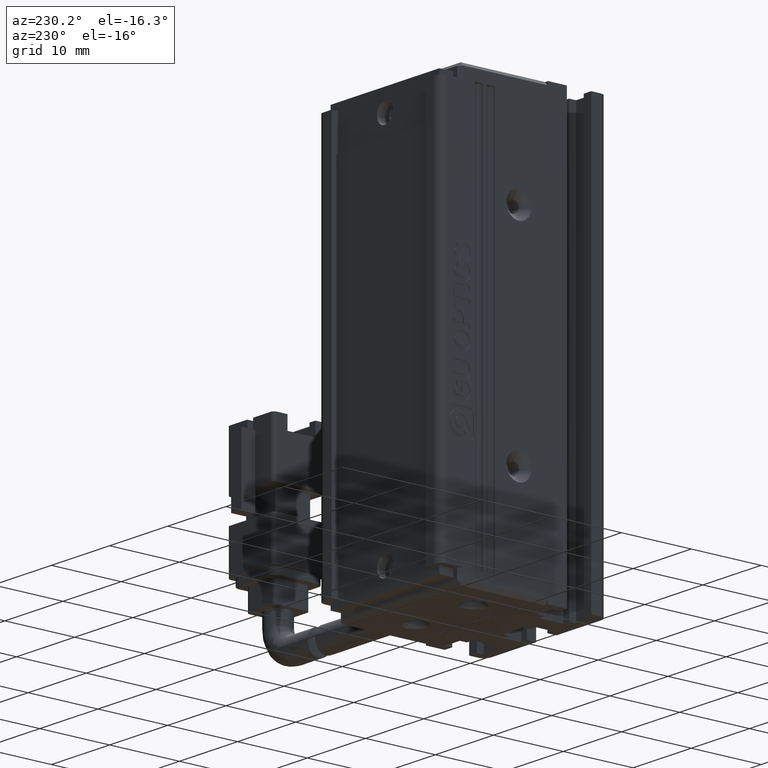
[diagram: clean part render]
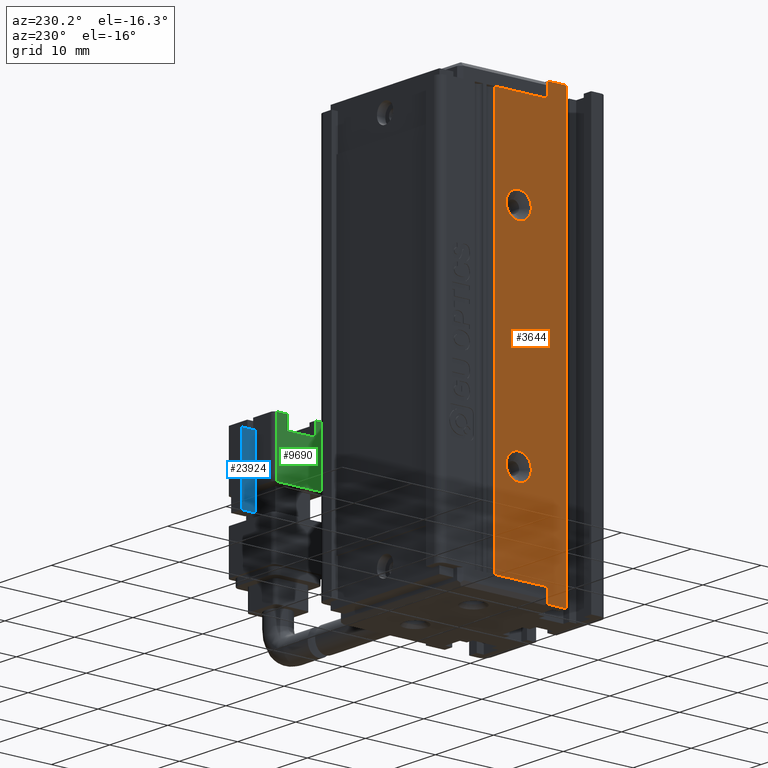
[diagram: same view with three faces highlighted in distinct colors, each labeled with its STEP entity id]
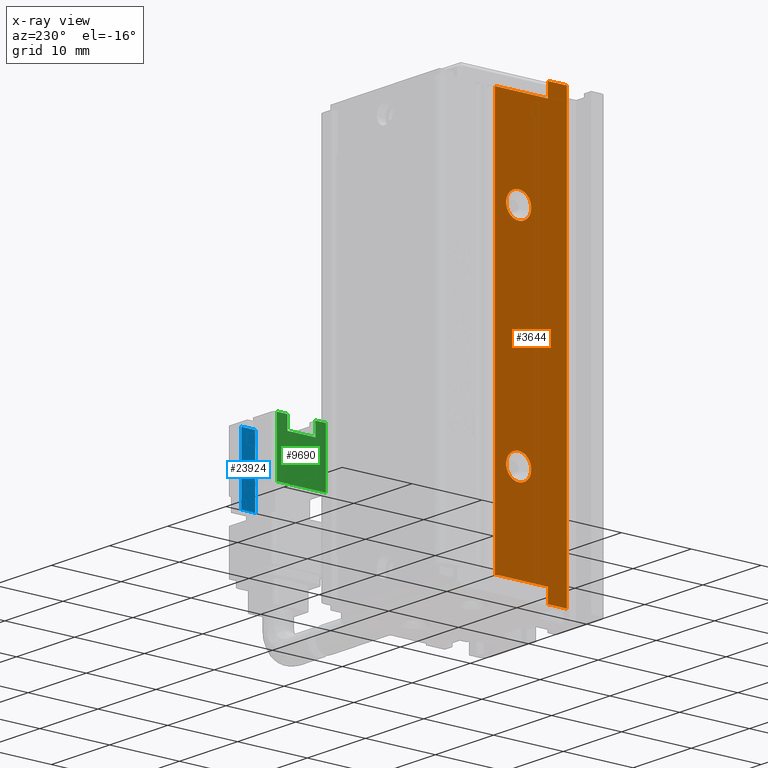
[diagram: x-ray of the same camera — body ghosted, the three highlighted faces saturated]
A machine part, auxiliary view with three faces highlighted in distinct colors.
The next image is the same camera in x-ray (body ghosted, the three faces saturated) — at least one of them is partly hidden behind the body in this view.
Their STEP definitions:

[orange] entity #3644 — the highlighted planar face has unit normal (-1, 0, 0).
#55 = VERTEX_POINT ( 'NONE', #16352 ) ;
#509 = DIRECTION ( 'NONE',  ( 0.0000000000000000000, -0.0000000000000000000, -1.000000000000000000 ) ) ;
#512 = EDGE_CURVE ( 'NONE', #7835, #55, #3015, .T. ) ;
#1020 = ORIENTED_EDGE ( 'NONE', *, *, #512, .T. ) ;
#1187 = VERTEX_POINT ( 'NONE', #3059 ) ;
#1209 = DIRECTION ( 'NONE',  ( 1.000000000000000000, -0.0000000000000000000, -0.0000000000000000000 ) ) ;
#1297 = VECTOR ( 'NONE', #27768, 1000.000000000000000 ) ;
#1364 = DIRECTION ( 'NONE',  ( 1.000000000000000000, -0.0000000000000000000, -0.0000000000000000000 ) ) ;
#1419 = ORIENTED_EDGE ( 'NONE', *, *, #27480, .T. ) ;
#1869 = EDGE_LOOP ( 'NONE', ( #1419, #16482 ) ) ;
#2285 = EDGE_CURVE ( 'NONE', #21422, #22718, #20248, .T. ) ;
#2566 = EDGE_CURVE ( 'NONE', #1187, #20729, #3128, .T. ) ;
#2955 = DIRECTION ( 'NONE',  ( 1.000000000000000000, -0.0000000000000000000, -0.0000000000000000000 ) ) ;
#3015 = LINE ( 'NONE', #19699, #22200 ) ;
#3059 = CARTESIAN_POINT ( 'NONE',  ( 19.92537974682041800, 19.78379746835443600, -128.1999999999834500 ) ) ;
#3128 = CIRCLE ( 'NONE', #18076, 1.800000000016566100 ) ;
#3283 = CARTESIAN_POINT ( 'NONE',  ( 19.92537974683542500, 23.18379746835443500, -87.00000000000001400 ) ) ;
#3320 = FACE_BOUND ( 'NONE', #1869, .T. ) ;
#3323 = LINE ( 'NONE', #11325, #4008 ) ;
#3421 = EDGE_LOOP ( 'NONE', ( #21245, #27255, #27533, #22127, #16016, #1020, #24402, #4046 ) ) ;
#3503 = CIRCLE ( 'NONE', #19889, 1.799999999989268400 ) ;
#3644 = ADVANCED_FACE ( 'NONE', ( #12599, #3320, #8489 ), #20658, .T. ) ;
#3819 = DIRECTION ( 'NONE',  ( -0.0000000000000000000, -1.000000000000000000, 0.0000000000000000000 ) ) ;
#3847 = AXIS2_PLACEMENT_3D ( 'NONE', #27996, #28089, #12608 ) ;
#4008 = VECTOR ( 'NONE', #13643, 1000.000000000000000 ) ;
#4046 = ORIENTED_EDGE ( 'NONE', *, *, #9944, .T. ) ;
#4130 = CIRCLE ( 'NONE', #4235, 1.800000000016566100 ) ;
#4235 = AXIS2_PLACEMENT_3D ( 'NONE', #5188, #7421, #15739 ) ;
#4725 = VERTEX_POINT ( 'NONE', #22128 ) ;
#5072 = CIRCLE ( 'NONE', #7975, 1.799999999989268400 ) ;
#5188 = CARTESIAN_POINT ( 'NONE',  ( 19.92537974682041800, 19.78379746835443600, -130.0000000000000000 ) ) ;
#5709 = DIRECTION ( 'NONE',  ( 0.0000000000000000000, 0.0000000000000000000, 1.000000000000000000 ) ) ;
#6232 = EDGE_CURVE ( 'NONE', #20729, #1187, #4130, .T. ) ;
#7421 = DIRECTION ( 'NONE',  ( 1.000000000000000000, -0.0000000000000000000, -0.0000000000000000000 ) ) ;
#7835 = VERTEX_POINT ( 'NONE', #9599 ) ;
#7975 = AXIS2_PLACEMENT_3D ( 'NONE', #22502, #2955, #24906 ) ;
#8007 = CARTESIAN_POINT ( 'NONE',  ( 19.92537974683542500, 12.88379746835443700, -85.00000000000000000 ) ) ;
#8489 = FACE_BOUND ( 'NONE', #20541, .T. ) ;
#9355 = CARTESIAN_POINT ( 'NONE',  ( 19.92537974682041800, 19.78379746835443600, -98.20000000001073200 ) ) ;
#9599 = CARTESIAN_POINT ( 'NONE',  ( 19.92537974683542500, 15.58379746835443700, -143.0000000000000300 ) ) ;
#9944 = EDGE_CURVE ( 'NONE', #27633, #16245, #10401, .T. ) ;
#10257 = CARTESIAN_POINT ( 'NONE',  ( 19.92537974683542500, 7.083797468354437600, -145.0000000000000300 ) ) ;
#10301 = VERTEX_POINT ( 'NONE', #14009 ) ;
#10401 = LINE ( 'NONE', #28006, #16214 ) ;
#11325 = CARTESIAN_POINT ( 'NONE',  ( 19.92537974683542500, 7.083797468354437600, -85.00000000000000000 ) ) ;
#11517 = CARTESIAN_POINT ( 'NONE',  ( 19.92537974683542500, 15.58379746835443700, -87.00000000000001400 ) ) ;
#11709 = EDGE_CURVE ( 'NONE', #24891, #7835, #14540, .T. ) ;
#12446 = CARTESIAN_POINT ( 'NONE',  ( 19.92537974682041800, 19.78379746835443600, -100.0000000000000000 ) ) ;
#12599 = FACE_OUTER_BOUND ( 'NONE', #3421, .T. ) ;
#12608 = DIRECTION ( 'NONE',  ( 0.0000000000000000000, 0.0000000000000000000, 1.000000000000000000 ) ) ;
#12813 = CARTESIAN_POINT ( 'NONE',  ( 19.92537974683542500, 7.083797468354437600, -143.0000000000000300 ) ) ;
#13122 = EDGE_CURVE ( 'NONE', #4725, #21422, #19533, .T. ) ;
#13285 = DIRECTION ( 'NONE',  ( 0.0000000000000000000, -0.0000000000000000000, -1.000000000000000000 ) ) ;
#13406 = CARTESIAN_POINT ( 'NONE',  ( 19.92537974683542500, 15.58379746835443700, -85.00000000000000000 ) ) ;
#13643 = DIRECTION ( 'NONE',  ( 0.0000000000000000000, 1.000000000000000000, -0.0000000000000000000 ) ) ;
#13916 = DIRECTION ( 'NONE',  ( 0.0000000000000000000, 1.000000000000000000, 0.0000000000000000000 ) ) ;
#14009 = CARTESIAN_POINT ( 'NONE',  ( 19.92537974682041800, 19.78379746835443600, -101.7999999999892700 ) ) ;
#14238 = EDGE_CURVE ( 'NONE', #22718, #24891, #26044, .T. ) ;
#14475 = CARTESIAN_POINT ( 'NONE',  ( 19.92537974682041800, 19.78379746835443600, -130.0000000000000000 ) ) ;
#14540 = LINE ( 'NONE', #12813, #18320 ) ;
#15739 = DIRECTION ( 'NONE',  ( 0.0000000000000000000, 0.0000000000000000000, 1.000000000000000000 ) ) ;
#15835 = EDGE_CURVE ( 'NONE', #10301, #25540, #3503, .T. ) ;
#16016 = ORIENTED_EDGE ( 'NONE', *, *, #11709, .T. ) ;
#16214 = VECTOR ( 'NONE', #5709, 1000.000000000000000 ) ;
#16245 = VERTEX_POINT ( 'NONE', #8007 ) ;
#16352 = CARTESIAN_POINT ( 'NONE',  ( 19.92537974683542500, 15.58379746835443700, -145.0000000000000300 ) ) ;
#16482 = ORIENTED_EDGE ( 'NONE', *, *, #15835, .T. ) ;
#16536 = DIRECTION ( 'NONE',  ( 0.0000000000000000000, 0.0000000000000000000, 1.000000000000000000 ) ) ;
#16689 = DIRECTION ( 'NONE',  ( 0.0000000000000000000, 0.0000000000000000000, 1.000000000000000000 ) ) ;
#17124 = VECTOR ( 'NONE', #509, 1000.000000000000000 ) ;
#17644 = CARTESIAN_POINT ( 'NONE',  ( 19.92537974683542500, 23.18379746835443500, -143.0000000000000300 ) ) ;
#17688 = CARTESIAN_POINT ( 'NONE',  ( 19.92537974682041800, 19.78379746835443600, -131.8000000000165800 ) ) ;
#18076 = AXIS2_PLACEMENT_3D ( 'NONE', #14475, #1364, #16689 ) ;
#18320 = VECTOR ( 'NONE', #19499, 1000.000000000000000 ) ;
#19499 = DIRECTION ( 'NONE',  ( -0.0000000000000000000, -1.000000000000000000, 0.0000000000000000000 ) ) ;
#19533 = LINE ( 'NONE', #13406, #17124 ) ;
#19534 = EDGE_CURVE ( 'NONE', #55, #27633, #26527, .T. ) ;
#19699 = CARTESIAN_POINT ( 'NONE',  ( 19.92537974683542500, 15.58379746835443700, -85.00000000000000000 ) ) ;
#19889 = AXIS2_PLACEMENT_3D ( 'NONE', #12446, #1209, #16536 ) ;
#20248 = LINE ( 'NONE', #22365, #26826 ) ;
#20541 = EDGE_LOOP ( 'NONE', ( #21748, #21702 ) ) ;
#20658 = PLANE ( 'NONE',  #3847 ) ;
#20729 = VERTEX_POINT ( 'NONE', #17688 ) ;
#21245 = ORIENTED_EDGE ( 'NONE', *, *, #21479, .T. ) ;
#21422 = VERTEX_POINT ( 'NONE', #11517 ) ;
#21479 = EDGE_CURVE ( 'NONE', #16245, #4725, #3323, .T. ) ;
#21702 = ORIENTED_EDGE ( 'NONE', *, *, #6232, .T. ) ;
#21748 = ORIENTED_EDGE ( 'NONE', *, *, #2566, .T. ) ;
#22127 = ORIENTED_EDGE ( 'NONE', *, *, #14238, .T. ) ;
#22128 = CARTESIAN_POINT ( 'NONE',  ( 19.92537974683542500, 15.58379746835443700, -85.00000000000000000 ) ) ;
#22200 = VECTOR ( 'NONE', #13285, 1000.000000000000000 ) ;
#22365 = CARTESIAN_POINT ( 'NONE',  ( 19.92537974683542500, 31.08379746835444000, -87.00000000000001400 ) ) ;
#22502 = CARTESIAN_POINT ( 'NONE',  ( 19.92537974682041800, 19.78379746835443600, -100.0000000000000000 ) ) ;
#22718 = VERTEX_POINT ( 'NONE', #3283 ) ;
#24402 = ORIENTED_EDGE ( 'NONE', *, *, #19534, .T. ) ;
#24891 = VERTEX_POINT ( 'NONE', #17644 ) ;
#24906 = DIRECTION ( 'NONE',  ( 0.0000000000000000000, 0.0000000000000000000, 1.000000000000000000 ) ) ;
#24943 = CARTESIAN_POINT ( 'NONE',  ( 19.92537974683542500, 12.88379746835443700, -145.0000000000000300 ) ) ;
#25540 = VERTEX_POINT ( 'NONE', #9355 ) ;
#25826 = VECTOR ( 'NONE', #3819, 1000.000000000000000 ) ;
#26044 = LINE ( 'NONE', #28049, #1297 ) ;
#26527 = LINE ( 'NONE', #10257, #25826 ) ;
#26826 = VECTOR ( 'NONE', #13916, 1000.000000000000000 ) ;
#27255 = ORIENTED_EDGE ( 'NONE', *, *, #13122, .T. ) ;
#27480 = EDGE_CURVE ( 'NONE', #25540, #10301, #5072, .T. ) ;
#27533 = ORIENTED_EDGE ( 'NONE', *, *, #2285, .T. ) ;
#27633 = VERTEX_POINT ( 'NONE', #24943 ) ;
#27768 = DIRECTION ( 'NONE',  ( -0.0000000000000000000, -0.0000000000000000000, -1.000000000000000000 ) ) ;
#27996 = CARTESIAN_POINT ( 'NONE',  ( 19.92537974683542500, 7.083797468354437600, -85.00000000000000000 ) ) ;
#28006 = CARTESIAN_POINT ( 'NONE',  ( 19.92537974683542500, 12.88379746835443700, -85.00000000000000000 ) ) ;
#28049 = CARTESIAN_POINT ( 'NONE',  ( 19.92537974683542500, 23.18379746835443800, -85.00000000000000000 ) ) ;
#28089 = DIRECTION ( 'NONE',  ( -1.000000000000000000, 0.0000000000000000000, 0.0000000000000000000 ) ) ;

[blue] entity #23924 — the highlighted planar face has unit normal (-1, -0, -0).
#998 = VERTEX_POINT ( 'NONE', #22063 ) ;
#1096 = EDGE_CURVE ( 'NONE', #4216, #7910, #4266, .T. ) ;
#2213 = VECTOR ( 'NONE', #3191, 1000.000000000000000 ) ;
#2629 = VECTOR ( 'NONE', #5534, 1000.000000000000000 ) ;
#3191 = DIRECTION ( 'NONE',  ( -1.041348031262155300E-030, 5.551115123125780200E-017, 1.000000000000000000 ) ) ;
#3278 = ORIENTED_EDGE ( 'NONE', *, *, #13775, .T. ) ;
#3401 = DIRECTION ( 'NONE',  ( -1.000000000000000000, -3.304235192336770000E-015, -8.579261317967046800E-031 ) ) ;
#3767 = CARTESIAN_POINT ( 'NONE',  ( 63.05037974683536100, 23.58379746835462100, -116.4499999999999900 ) ) ;
#4216 = VERTEX_POINT ( 'NONE', #16300 ) ;
#4266 = LINE ( 'NONE', #9810, #2213 ) ;
#5397 = VECTOR ( 'NONE', #18930, 1000.000000000000000 ) ;
#5534 = DIRECTION ( 'NONE',  ( -1.041348031262155300E-030, 5.551115123125780200E-017, 1.000000000000000000 ) ) ;
#6028 = CARTESIAN_POINT ( 'NONE',  ( 63.05037974683536100, 21.58379746835462100, -116.4499999999999900 ) ) ;
#6802 = VERTEX_POINT ( 'NONE', #11673 ) ;
#6861 = AXIS2_PLACEMENT_3D ( 'NONE', #12222, #3401, #20760 ) ;
#7910 = VERTEX_POINT ( 'NONE', #6028 ) ;
#8484 = LINE ( 'NONE', #10039, #2629 ) ;
#9810 = CARTESIAN_POINT ( 'NONE',  ( 63.05037974683536100, 21.58379746835462100, -114.9499999999999900 ) ) ;
#10039 = CARTESIAN_POINT ( 'NONE',  ( 63.05037974683536100, 21.58379746835462100, -125.9499999999999700 ) ) ;
#10747 = CARTESIAN_POINT ( 'NONE',  ( 63.05037974683536100, 21.58379746835462100, -125.9499999999999700 ) ) ;
#11483 = ORIENTED_EDGE ( 'NONE', *, *, #1096, .T. ) ;
#11673 = CARTESIAN_POINT ( 'NONE',  ( 63.05037974683536100, 23.58379746835462100, -116.4499999999999900 ) ) ;
#12222 = CARTESIAN_POINT ( 'NONE',  ( 63.05037974683536100, 21.58379746835462100, -116.4499999999999900 ) ) ;
#13391 = ORIENTED_EDGE ( 'NONE', *, *, #14652, .T. ) ;
#13775 = EDGE_CURVE ( 'NONE', #6802, #998, #20853, .T. ) ;
#14412 = PLANE ( 'NONE',  #6861 ) ;
#14652 = EDGE_CURVE ( 'NONE', #18958, #4216, #8484, .T. ) ;
#15333 = EDGE_CURVE ( 'NONE', #998, #18958, #16933, .T. ) ;
#15403 = ORIENTED_EDGE ( 'NONE', *, *, #25305, .T. ) ;
#16300 = CARTESIAN_POINT ( 'NONE',  ( 63.05037974683536100, 21.58379746835462100, -122.9499999999999700 ) ) ;
#16933 = LINE ( 'NONE', #19450, #18327 ) ;
#18327 = VECTOR ( 'NONE', #21580, 1000.000000000000000 ) ;
#18768 = CARTESIAN_POINT ( 'NONE',  ( 63.05037974683536100, 21.58379746835462100, -116.4499999999999900 ) ) ;
#18930 = DIRECTION ( 'NONE',  ( 1.041348031262155300E-030, -5.551115123125780200E-017, -1.000000000000000000 ) ) ;
#18958 = VERTEX_POINT ( 'NONE', #10747 ) ;
#19450 = CARTESIAN_POINT ( 'NONE',  ( 63.05037974683536100, 21.58379746835462100, -125.9499999999999700 ) ) ;
#19857 = VECTOR ( 'NONE', #27142, 1000.000000000000000 ) ;
#20559 = ORIENTED_EDGE ( 'NONE', *, *, #15333, .T. ) ;
#20760 = DIRECTION ( 'NONE',  ( -1.041348031262155300E-030, 5.551115123125780200E-017, 1.000000000000000000 ) ) ;
#20853 = LINE ( 'NONE', #3767, #5397 ) ;
#21580 = DIRECTION ( 'NONE',  ( 3.304235192336770000E-015, -1.000000000000000000, 5.551115123125780200E-017 ) ) ;
#22063 = CARTESIAN_POINT ( 'NONE',  ( 63.05037974683536100, 23.58379746835461800, -125.9499999999999700 ) ) ;
#23924 = ADVANCED_FACE ( 'NONE', ( #27019 ), #14412, .T. ) ;
#24859 = EDGE_LOOP ( 'NONE', ( #3278, #20559, #13391, #11483, #15403 ) ) ;
#25305 = EDGE_CURVE ( 'NONE', #7910, #6802, #27106, .T. ) ;
#27019 = FACE_OUTER_BOUND ( 'NONE', #24859, .T. ) ;
#27106 = LINE ( 'NONE', #18768, #19857 ) ;
#27142 = DIRECTION ( 'NONE',  ( -3.304235192336770000E-015, 1.000000000000000000, -5.551115123125780200E-017 ) ) ;

[green] entity #9690 — the highlighted planar face has unit normal (1, 0, 0).
#146 = ORIENTED_EDGE ( 'NONE', *, *, #22204, .F. ) ;
#753 = VERTEX_POINT ( 'NONE', #14876 ) ;
#2372 = EDGE_CURVE ( 'NONE', #26083, #753, #19571, .T. ) ;
#2374 = DIRECTION ( 'NONE',  ( 3.552052831762028200E-015, -1.000000000000000000, 5.551115123125780200E-017 ) ) ;
#2433 = DIRECTION ( 'NONE',  ( -3.304235192336770000E-015, 1.000000000000000000, -5.551115123125780200E-017 ) ) ;
#2575 = ORIENTED_EDGE ( 'NONE', *, *, #2372, .F. ) ;
#2670 = VERTEX_POINT ( 'NONE', #14088 ) ;
#2763 = VECTOR ( 'NONE', #18534, 1000.000000000000000 ) ;
#3011 = LINE ( 'NONE', #6506, #18090 ) ;
#3069 = CARTESIAN_POINT ( 'NONE',  ( 59.92537974683538900, 14.08379746835460700, -114.9499999999999900 ) ) ;
#3471 = LINE ( 'NONE', #11028, #26139 ) ;
#4288 = PLANE ( 'NONE',  #21307 ) ;
#4643 = DIRECTION ( 'NONE',  ( 3.552052831762028200E-015, -1.000000000000000000, 5.551115123125780200E-017 ) ) ;
#4675 = DIRECTION ( 'NONE',  ( 3.552052831762028200E-015, -1.000000000000000000, 5.551115123125780200E-017 ) ) ;
#5425 = ORIENTED_EDGE ( 'NONE', *, *, #24715, .F. ) ;
#6081 = LINE ( 'NONE', #22361, #6402 ) ;
#6402 = VECTOR ( 'NONE', #2433, 1000.000000000000000 ) ;
#6506 = CARTESIAN_POINT ( 'NONE',  ( 59.92537974683536800, 21.08379746835460700, -114.9499999999999900 ) ) ;
#6701 = DIRECTION ( 'NONE',  ( -3.304235192336770000E-015, 1.000000000000000000, -5.551115123125780200E-017 ) ) ;
#6716 = DIRECTION ( 'NONE',  ( 1.041348031262155300E-030, -5.551115123125780200E-017, -1.000000000000000000 ) ) ;
#6869 = CARTESIAN_POINT ( 'NONE',  ( 59.92537974683536800, 21.08379746835460700, -116.8686299809477300 ) ) ;
#7027 = EDGE_CURVE ( 'NONE', #17751, #10169, #3011, .T. ) ;
#7309 = VERTEX_POINT ( 'NONE', #21346 ) ;
#8562 = VERTEX_POINT ( 'NONE', #12523 ) ;
#8578 = ORIENTED_EDGE ( 'NONE', *, *, #17445, .F. ) ;
#8902 = EDGE_CURVE ( 'NONE', #15264, #7309, #6081, .T. ) ;
#9690 = ADVANCED_FACE ( 'NONE', ( #15207 ), #4288, .F. ) ;
#9804 = ORIENTED_EDGE ( 'NONE', *, *, #7027, .T. ) ;
#10169 = VERTEX_POINT ( 'NONE', #17562 ) ;
#10382 = ORIENTED_EDGE ( 'NONE', *, *, #27394, .F. ) ;
#10588 = LINE ( 'NONE', #24745, #17435 ) ;
#10707 = EDGE_CURVE ( 'NONE', #7309, #2670, #3471, .T. ) ;
#11028 = CARTESIAN_POINT ( 'NONE',  ( 59.92537974683536800, 21.08379746835460700, -114.9499999999999900 ) ) ;
#11607 = LINE ( 'NONE', #6869, #11951 ) ;
#11852 = LINE ( 'NONE', #16549, #26991 ) ;
#11951 = VECTOR ( 'NONE', #4643, 1000.000000000000000 ) ;
#12523 = CARTESIAN_POINT ( 'NONE',  ( 59.92537974683538900, 15.58379746835460900, -116.8686299809477300 ) ) ;
#14088 = CARTESIAN_POINT ( 'NONE',  ( 59.92537974683536800, 21.08379746835460700, -114.9499999999999900 ) ) ;
#14876 = CARTESIAN_POINT ( 'NONE',  ( 59.92537974683536800, 19.58379746835460700, -116.8686299809477300 ) ) ;
#15207 = FACE_OUTER_BOUND ( 'NONE', #25454, .T. ) ;
#15264 = VERTEX_POINT ( 'NONE', #16668 ) ;
#15420 = DIRECTION ( 'NONE',  ( -1.041348031262155300E-030, 5.551115123125780200E-017, 1.000000000000000000 ) ) ;
#16549 = CARTESIAN_POINT ( 'NONE',  ( 59.92537974683538900, 15.58379746835460900, -114.9499999999999900 ) ) ;
#16668 = CARTESIAN_POINT ( 'NONE',  ( 59.92537974683538900, 14.08379746835460700, -122.9499999999999700 ) ) ;
#17435 = VECTOR ( 'NONE', #4675, 1000.000000000000000 ) ;
#17445 = EDGE_CURVE ( 'NONE', #753, #8562, #11607, .T. ) ;
#17562 = CARTESIAN_POINT ( 'NONE',  ( 59.92537974683538900, 15.58379746835460900, -114.9499999999999900 ) ) ;
#17598 = DIRECTION ( 'NONE',  ( 1.000000000000000000, 3.552052831762028200E-015, 8.441694893367958300E-031 ) ) ;
#17662 = ORIENTED_EDGE ( 'NONE', *, *, #8902, .F. ) ;
#17751 = VERTEX_POINT ( 'NONE', #3069 ) ;
#18090 = VECTOR ( 'NONE', #6701, 1000.000000000000000 ) ;
#18517 = ORIENTED_EDGE ( 'NONE', *, *, #10707, .F. ) ;
#18534 = DIRECTION ( 'NONE',  ( 1.041348031262155300E-030, -5.551115123125780200E-017, -1.000000000000000000 ) ) ;
#19304 = LINE ( 'NONE', #21762, #20675 ) ;
#19531 = CARTESIAN_POINT ( 'NONE',  ( 59.92537974683536800, 21.08379746835460700, -114.9499999999999900 ) ) ;
#19571 = LINE ( 'NONE', #20240, #2763 ) ;
#20240 = CARTESIAN_POINT ( 'NONE',  ( 59.92537974683536800, 19.58379746835460700, -114.9499999999999900 ) ) ;
#20675 = VECTOR ( 'NONE', #6716, 1000.000000000000000 ) ;
#20800 = DIRECTION ( 'NONE',  ( -1.041348031262155300E-030, 5.551115123125780200E-017, 1.000000000000000000 ) ) ;
#21307 = AXIS2_PLACEMENT_3D ( 'NONE', #19531, #17598, #2374 ) ;
#21346 = CARTESIAN_POINT ( 'NONE',  ( 59.92537974683536800, 21.08379746835460700, -122.9499999999999700 ) ) ;
#21762 = CARTESIAN_POINT ( 'NONE',  ( 59.92537974683538900, 14.08379746835460700, -114.9499999999999900 ) ) ;
#21874 = CARTESIAN_POINT ( 'NONE',  ( 59.92537974683536800, 19.58379746835460700, -114.9499999999999900 ) ) ;
#22204 = EDGE_CURVE ( 'NONE', #8562, #10169, #11852, .T. ) ;
#22361 = CARTESIAN_POINT ( 'NONE',  ( 59.92537974683536800, 21.08379746835460700, -122.9499999999999700 ) ) ;
#24715 = EDGE_CURVE ( 'NONE', #17751, #15264, #19304, .T. ) ;
#24745 = CARTESIAN_POINT ( 'NONE',  ( 59.92537974683536800, 21.08379746835460700, -114.9499999999999900 ) ) ;
#25454 = EDGE_LOOP ( 'NONE', ( #2575, #10382, #18517, #17662, #5425, #9804, #146, #8578 ) ) ;
#26083 = VERTEX_POINT ( 'NONE', #21874 ) ;
#26139 = VECTOR ( 'NONE', #15420, 1000.000000000000000 ) ;
#26991 = VECTOR ( 'NONE', #20800, 1000.000000000000000 ) ;
#27394 = EDGE_CURVE ( 'NONE', #2670, #26083, #10588, .T. ) ;